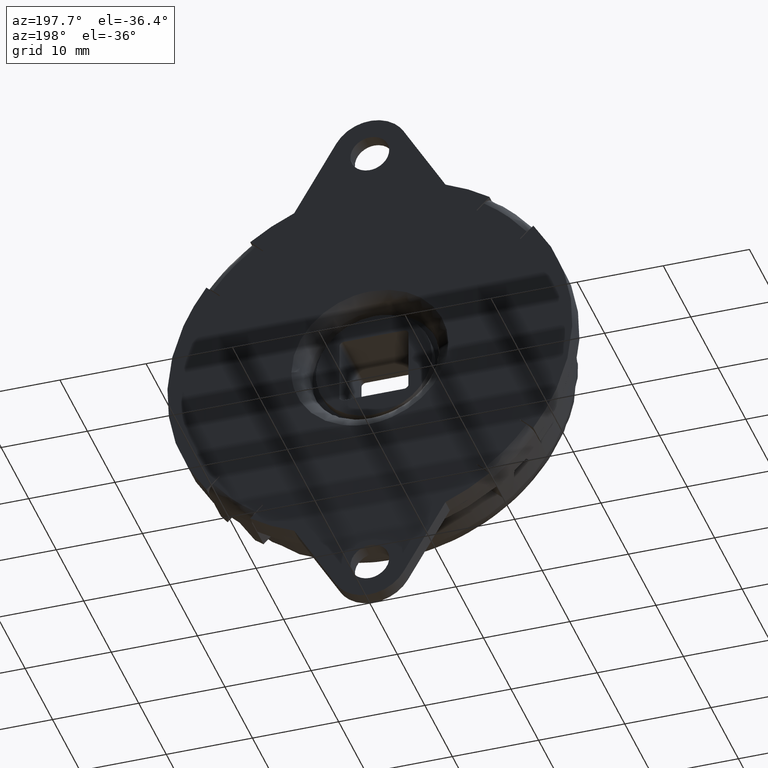
[diagram: clean part render]
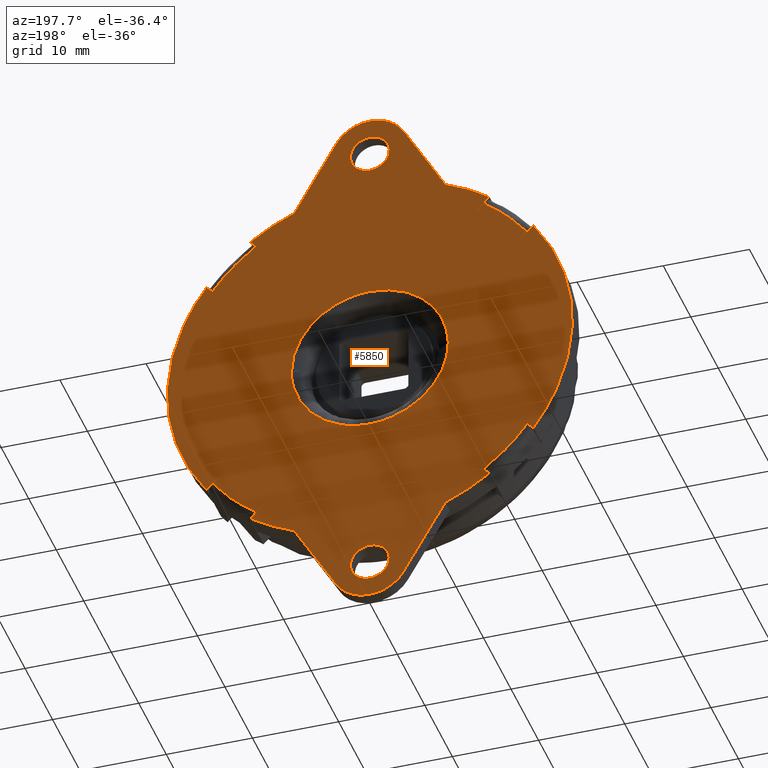
[diagram: same view with one face highlighted and labeled with its STEP entity id]
A machine part, auxiliary view. The second image highlights one B-rep face of the part: STEP entity #5850.
In plain terms, the highlighted face is a freeform B-spline surface patch.
Its self-contained STEP definition (entity closure, byte-faithful):
#1320=CARTESIAN_POINT('',(-17.462018315590651,0.0,-12.370849459353121));
#1321=VERTEX_POINT('',#1320);
#1327=CARTESIAN_POINT('',(-17.403202521887501,0.0,-12.453455021887279));
#1328=VERTEX_POINT('',#1327);
#1329=CARTESIAN_POINT('',(-17.462018315590640,0.0,-12.370849459353110));
#1330=CARTESIAN_POINT('',(-17.432708276701906,0.0,-12.412221916239552));
#1331=CARTESIAN_POINT('',(-17.403202521887479,0.0,-12.453455021887271));
#1339=(BOUNDED_CURVE()B_SPLINE_CURVE(2,(#1329,#1330,#1331),.UNSPECIFIED.,.F.,.U.)CURVE()GEOMETRIC_REPRESENTATION_ITEM()QUASI_UNIFORM_CURVE()RATIONAL_B_SPLINE_CURVE((1.0,0.999997193261698,1.0))REPRESENTATION_ITEM(''));
#1340=EDGE_CURVE('',#1321,#1328,#1339,.T.);
#1424=CARTESIAN_POINT('',(-12.453454999999799,0.0,-17.403202499999999));
#1425=VERTEX_POINT('',#1424);
#1431=CARTESIAN_POINT('',(-12.370849459353121,0.0,-17.462018315590651));
#1432=VERTEX_POINT('',#1431);
#1433=CARTESIAN_POINT('',(-12.453454999999799,0.0,-17.403202499999999));
#1434=CARTESIAN_POINT('',(-12.412221914174198,0.0,-17.432708278165094));
#1435=CARTESIAN_POINT('',(-12.370849459353110,0.0,-17.462018315590630));
#1443=(BOUNDED_CURVE()B_SPLINE_CURVE(2,(#1433,#1434,#1435),.UNSPECIFIED.,.F.,.U.)CURVE()GEOMETRIC_REPRESENTATION_ITEM()QUASI_UNIFORM_CURVE()RATIONAL_B_SPLINE_CURVE((1.0,0.999997193261978,1.0))REPRESENTATION_ITEM(''));
#1444=EDGE_CURVE('',#1425,#1432,#1443,.T.);
#1468=CARTESIAN_POINT('',(12.370849459353121,0.0,-17.462018315590651));
#1469=VERTEX_POINT('',#1468);
#1475=CARTESIAN_POINT('',(12.453455021887279,0.0,-17.403202521887501));
#1476=VERTEX_POINT('',#1475);
#1477=CARTESIAN_POINT('',(12.370849459353110,0.0,-17.462018315590640));
#1478=CARTESIAN_POINT('',(12.412221916239552,0.0,-17.432708276701906));
#1479=CARTESIAN_POINT('',(12.453455021887271,0.0,-17.403202521887479));
#1487=(BOUNDED_CURVE()B_SPLINE_CURVE(2,(#1477,#1478,#1479),.UNSPECIFIED.,.F.,.U.)CURVE()GEOMETRIC_REPRESENTATION_ITEM()QUASI_UNIFORM_CURVE()RATIONAL_B_SPLINE_CURVE((1.0,0.999997193261698,1.0))REPRESENTATION_ITEM(''));
#1488=EDGE_CURVE('',#1469,#1476,#1487,.T.);
#1572=CARTESIAN_POINT('',(17.403202499999999,0.0,-12.453454999999799));
#1573=VERTEX_POINT('',#1572);
#1579=CARTESIAN_POINT('',(17.462018315590651,0.0,-12.370849459353121));
#1580=VERTEX_POINT('',#1579);
#1581=CARTESIAN_POINT('',(17.403202499999999,0.0,-12.453454999999799));
#1582=CARTESIAN_POINT('',(17.432708278165151,0.0,-12.412221914174099));
#1583=CARTESIAN_POINT('',(17.462018315590630,0.0,-12.370849459353110));
#1591=(BOUNDED_CURVE()B_SPLINE_CURVE(2,(#1581,#1582,#1583),.UNSPECIFIED.,.F.,.U.)CURVE()GEOMETRIC_REPRESENTATION_ITEM()QUASI_UNIFORM_CURVE()RATIONAL_B_SPLINE_CURVE((1.0,0.999997193261978,1.0))REPRESENTATION_ITEM(''));
#1592=EDGE_CURVE('',#1573,#1580,#1591,.T.);
#1616=CARTESIAN_POINT('',(17.462018315590651,0.0,12.370849459353121));
#1617=VERTEX_POINT('',#1616);
#1623=CARTESIAN_POINT('',(17.403202521887501,0.0,12.453455021887279));
#1624=VERTEX_POINT('',#1623);
#1625=CARTESIAN_POINT('',(17.462018315590640,0.0,12.370849459353110));
#1626=CARTESIAN_POINT('',(17.432708276701906,0.0,12.412221916239552));
#1627=CARTESIAN_POINT('',(17.403202521887479,0.0,12.453455021887271));
#1635=(BOUNDED_CURVE()B_SPLINE_CURVE(2,(#1625,#1626,#1627),.UNSPECIFIED.,.F.,.U.)CURVE()GEOMETRIC_REPRESENTATION_ITEM()QUASI_UNIFORM_CURVE()RATIONAL_B_SPLINE_CURVE((1.0,0.999997193261698,1.0))REPRESENTATION_ITEM(''));
#1636=EDGE_CURVE('',#1617,#1624,#1635,.T.);
#1720=CARTESIAN_POINT('',(12.453454999999799,0.0,17.403202499999999));
#1721=VERTEX_POINT('',#1720);
#1727=CARTESIAN_POINT('',(12.370849459353121,0.0,17.462018315590651));
#1728=VERTEX_POINT('',#1727);
#1729=CARTESIAN_POINT('',(12.453454999999799,0.0,17.403202499999999));
#1730=CARTESIAN_POINT('',(12.412221914173937,0.0,17.432708278165272));
#1731=CARTESIAN_POINT('',(12.370849459353121,0.0,17.462018315590630));
#1739=(BOUNDED_CURVE()B_SPLINE_CURVE(2,(#1729,#1730,#1731),.UNSPECIFIED.,.F.,.U.)CURVE()GEOMETRIC_REPRESENTATION_ITEM()QUASI_UNIFORM_CURVE()RATIONAL_B_SPLINE_CURVE((1.0,0.999997193261979,1.0))REPRESENTATION_ITEM(''));
#1740=EDGE_CURVE('',#1721,#1728,#1739,.T.);
#2055=CARTESIAN_POINT('',(-12.370849459353121,0.0,17.462018315590651));
#2056=VERTEX_POINT('',#2055);
#2062=CARTESIAN_POINT('',(-12.453455021887279,0.0,17.403202521887501));
#2063=VERTEX_POINT('',#2062);
#2064=CARTESIAN_POINT('',(-12.370849459353110,0.0,17.462018315590630));
#2065=CARTESIAN_POINT('',(-12.412221916240043,0.0,17.432708276701554));
#2066=CARTESIAN_POINT('',(-12.453455021887271,0.0,17.403202521887479));
#2074=(BOUNDED_CURVE()B_SPLINE_CURVE(2,(#2064,#2065,#2066),.UNSPECIFIED.,.F.,.U.)CURVE()GEOMETRIC_REPRESENTATION_ITEM()QUASI_UNIFORM_CURVE()RATIONAL_B_SPLINE_CURVE((1.0,0.999997193261698,1.0))REPRESENTATION_ITEM(''));
#2075=EDGE_CURVE('',#2056,#2063,#2074,.T.);
#2159=CARTESIAN_POINT('',(-17.403202499999999,0.0,12.453454999999799));
#2160=VERTEX_POINT('',#2159);
#2166=CARTESIAN_POINT('',(-17.462018315590651,0.0,12.370849459353121));
#2167=VERTEX_POINT('',#2166);
#2168=CARTESIAN_POINT('',(-17.403202499999999,0.0,12.453454999999799));
#2169=CARTESIAN_POINT('',(-17.432708278165283,0.0,12.412221914173928));
#2170=CARTESIAN_POINT('',(-17.462018315590630,0.0,12.370849459353110));
#2178=(BOUNDED_CURVE()B_SPLINE_CURVE(2,(#2168,#2169,#2170),.UNSPECIFIED.,.F.,.U.)CURVE()GEOMETRIC_REPRESENTATION_ITEM()QUASI_UNIFORM_CURVE()RATIONAL_B_SPLINE_CURVE((1.0,0.999997193261978,1.0))REPRESENTATION_ITEM(''));
#2179=EDGE_CURVE('',#2160,#2167,#2178,.T.);
#2276=CARTESIAN_POINT('',(-2.243064000891092,-4.510281E-017,-27.823467034505040));
#2277=VERTEX_POINT('',#2276);
#2283=CARTESIAN_POINT('',(0.0,0.0,-25.750000000000000));
#2284=VERTEX_POINT('',#2283);
#2285=CARTESIAN_POINT('',(0.0,0.0,-25.750000000000000));
#2286=CARTESIAN_POINT('',(-2.079878606031341,0.0,-25.750000000000007));
#2287=CARTESIAN_POINT('',(-2.243064000891092,-4.510281E-017,-27.823467034505033));
#2295=(BOUNDED_CURVE()B_SPLINE_CURVE(2,(#2285,#2286,#2287),.UNSPECIFIED.,.F.,.U.)B_SPLINE_CURVE_WITH_KNOTS((3,3),(0.0,0.236331300616364),.UNSPECIFIED.)CURVE()GEOMETRIC_REPRESENTATION_ITEM()RATIONAL_B_SPLINE_CURVE((1.0,0.723120658624413,0.969723356137585))REPRESENTATION_ITEM(''));
#2296=EDGE_CURVE('',#2284,#2277,#2295,.T.);
#2298=CARTESIAN_POINT('',(2.243064000891092,-4.510281E-017,-28.176532965494960));
#2299=VERTEX_POINT('',#2298);
#2300=CARTESIAN_POINT('',(2.243064000891093,-4.510281E-017,-28.176532965494964));
#2301=CARTESIAN_POINT('',(2.250000000000000,0.0,-28.088402740875068));
#2302=CARTESIAN_POINT('',(2.250000000000000,0.0,-28.0));
#2303=CARTESIAN_POINT('',(2.250000000000000,0.0,-25.750000000000004));
#2304=CARTESIAN_POINT('',(0.0,0.0,-25.750000000000000));
#2312=(BOUNDED_CURVE()B_SPLINE_CURVE(2,(#2300,#2301,#2302,#2303,#2304),.UNSPECIFIED.,.F.,.U.)B_SPLINE_CURVE_WITH_KNOTS((3,2,3),(0.736331300616365,0.750000000000000,1.0),.UNSPECIFIED.)CURVE()GEOMETRIC_REPRESENTATION_ITEM()RATIONAL_B_SPLINE_CURVE((0.969723356137586,0.983986122562134,1.0,0.707106781186547,1.0))REPRESENTATION_ITEM(''));
#2313=EDGE_CURVE('',#2299,#2284,#2312,.T.);
#2389=CARTESIAN_POINT('',(0.0,0.0,-30.250000000000000));
#2390=VERTEX_POINT('',#2389);
#2391=CARTESIAN_POINT('',(0.0,0.0,-30.250000000000000));
#2392=CARTESIAN_POINT('',(2.079878606031331,0.0,-30.249999999999996));
#2393=CARTESIAN_POINT('',(2.243064000891092,-4.510281E-017,-28.176532965494960));
#2401=(BOUNDED_CURVE()B_SPLINE_CURVE(2,(#2391,#2392,#2393),.UNSPECIFIED.,.F.,.U.)B_SPLINE_CURVE_WITH_KNOTS((3,3),(0.500000000000000,0.736331300616364),.UNSPECIFIED.)CURVE()GEOMETRIC_REPRESENTATION_ITEM()RATIONAL_B_SPLINE_CURVE((1.0,0.723120658624414,0.969723356137583))REPRESENTATION_ITEM(''));
#2402=EDGE_CURVE('',#2390,#2299,#2401,.T.);
#2404=CARTESIAN_POINT('',(-2.243064000891092,-4.510281E-017,-27.823467034505036));
#2405=CARTESIAN_POINT('',(-2.250000000000000,0.0,-27.911597259124928));
#2406=CARTESIAN_POINT('',(-2.250000000000000,0.0,-28.0));
#2407=CARTESIAN_POINT('',(-2.250000000000000,0.0,-30.250000000000000));
#2408=CARTESIAN_POINT('',(0.0,0.0,-30.250000000000000));
#2416=(BOUNDED_CURVE()B_SPLINE_CURVE(2,(#2404,#2405,#2406,#2407,#2408),.UNSPECIFIED.,.F.,.U.)B_SPLINE_CURVE_WITH_KNOTS((3,2,3),(0.236331300616364,0.250000000000000,0.500000000000000),.UNSPECIFIED.)CURVE()GEOMETRIC_REPRESENTATION_ITEM()RATIONAL_B_SPLINE_CURVE((0.969723356137585,0.983986122562134,1.0,0.707106781186547,1.0))REPRESENTATION_ITEM(''));
#2417=EDGE_CURVE('',#2277,#2390,#2416,.T.);
#2458=CARTESIAN_POINT('',(-2.243064000891092,-4.510281E-017,28.176532965494960));
#2459=VERTEX_POINT('',#2458);
#2465=CARTESIAN_POINT('',(0.0,0.0,30.250000000000000));
#2466=VERTEX_POINT('',#2465);
#2467=CARTESIAN_POINT('',(0.0,0.0,30.250000000000000));
#2468=CARTESIAN_POINT('',(-2.079878606031345,0.0,30.249999999999996));
#2469=CARTESIAN_POINT('',(-2.243064000891093,-4.510281E-017,28.176532965494964));
#2477=(BOUNDED_CURVE()B_SPLINE_CURVE(2,(#2467,#2468,#2469),.UNSPECIFIED.,.F.,.U.)B_SPLINE_CURVE_WITH_KNOTS((3,3),(0.0,0.236331300616365),.UNSPECIFIED.)CURVE()GEOMETRIC_REPRESENTATION_ITEM()RATIONAL_B_SPLINE_CURVE((1.0,0.723120658624413,0.969723356137586))REPRESENTATION_ITEM(''));
#2478=EDGE_CURVE('',#2466,#2459,#2477,.T.);
#2480=CARTESIAN_POINT('',(2.243064000891092,-4.510281E-017,27.823467034505040));
#2481=VERTEX_POINT('',#2480);
#2482=CARTESIAN_POINT('',(2.243064000891093,-4.510281E-017,27.823467034505040));
#2483=CARTESIAN_POINT('',(2.250000000000000,0.0,27.911597259124942));
#2484=CARTESIAN_POINT('',(2.250000000000000,0.0,28.0));
#2485=CARTESIAN_POINT('',(2.250000000000000,0.0,30.250000000000000));
#2486=CARTESIAN_POINT('',(0.0,0.0,30.250000000000000));
#2494=(BOUNDED_CURVE()B_SPLINE_CURVE(2,(#2482,#2483,#2484,#2485,#2486),.UNSPECIFIED.,.F.,.U.)B_SPLINE_CURVE_WITH_KNOTS((3,2,3),(0.736331300616365,0.750000000000000,1.0),.UNSPECIFIED.)CURVE()GEOMETRIC_REPRESENTATION_ITEM()RATIONAL_B_SPLINE_CURVE((0.969723356137586,0.983986122562134,1.0,0.707106781186547,1.0))REPRESENTATION_ITEM(''));
#2495=EDGE_CURVE('',#2481,#2466,#2494,.T.);
#2571=CARTESIAN_POINT('',(0.0,0.0,25.750000000000000));
#2572=VERTEX_POINT('',#2571);
#2573=CARTESIAN_POINT('',(0.0,0.0,25.750000000000000));
#2574=CARTESIAN_POINT('',(2.079878606031331,0.0,25.750000000000014));
#2575=CARTESIAN_POINT('',(2.243064000891092,-4.510281E-017,27.823467034505036));
#2583=(BOUNDED_CURVE()B_SPLINE_CURVE(2,(#2573,#2574,#2575),.UNSPECIFIED.,.F.,.U.)B_SPLINE_CURVE_WITH_KNOTS((3,3),(0.500000000000000,0.736331300616364),.UNSPECIFIED.)CURVE()GEOMETRIC_REPRESENTATION_ITEM()RATIONAL_B_SPLINE_CURVE((1.0,0.723120658624414,0.969723356137583))REPRESENTATION_ITEM(''));
#2584=EDGE_CURVE('',#2572,#2481,#2583,.T.);
#2586=CARTESIAN_POINT('',(-2.243064000891093,-4.510281E-017,28.176532965494964));
#2587=CARTESIAN_POINT('',(-2.250000000000000,0.0,28.088402740875068));
#2588=CARTESIAN_POINT('',(-2.250000000000000,0.0,28.0));
#2589=CARTESIAN_POINT('',(-2.250000000000000,0.0,25.750000000000004));
#2590=CARTESIAN_POINT('',(0.0,0.0,25.750000000000000));
#2598=(BOUNDED_CURVE()B_SPLINE_CURVE(2,(#2586,#2587,#2588,#2589,#2590),.UNSPECIFIED.,.F.,.U.)B_SPLINE_CURVE_WITH_KNOTS((3,2,3),(0.236331300616365,0.250000000000000,0.500000000000000),.UNSPECIFIED.)CURVE()GEOMETRIC_REPRESENTATION_ITEM()RATIONAL_B_SPLINE_CURVE((0.969723356137586,0.983986122562134,1.0,0.707106781186547,1.0))REPRESENTATION_ITEM(''));
#2599=EDGE_CURVE('',#2459,#2572,#2598,.T.);
#3218=CARTESIAN_POINT('',(-7.105427E-015,0.0,-9.099999999999994));
#3219=VERTEX_POINT('',#3218);
#3220=CARTESIAN_POINT('',(3.215047896220643,-2.284612E-014,-8.513134968886707));
#3221=VERTEX_POINT('',#3220);
#3222=CARTESIAN_POINT('',(-7.105427E-015,0.0,-9.099999999999994));
#3223=CARTESIAN_POINT('',(1.661086224057319,0.0,-9.099999999999994));
#3224=CARTESIAN_POINT('',(3.215047896220643,-2.284612E-014,-8.513134968886707));
#3232=(BOUNDED_CURVE()B_SPLINE_CURVE(2,(#3222,#3223,#3224),.UNSPECIFIED.,.F.,.U.)B_SPLINE_CURVE_WITH_KNOTS((3,3),(0.500000000000000,0.560000000004772),.UNSPECIFIED.)CURVE()GEOMETRIC_REPRESENTATION_ITEM()RATIONAL_B_SPLINE_CURVE((1.0,0.929705627479181,0.893152553771039))REPRESENTATION_ITEM(''));
#3233=EDGE_CURVE('',#3219,#3221,#3232,.T.);
#3235=CARTESIAN_POINT('',(-7.105427E-015,0.0,9.100000000000007));
#3236=VERTEX_POINT('',#3235);
#3237=CARTESIAN_POINT('',(-7.105427E-015,0.0,9.100000000000007));
#3238=CARTESIAN_POINT('',(-9.100000000000009,0.0,9.100000000000009));
#3239=CARTESIAN_POINT('',(-9.100000000000007,0.0,7.105427E-015));
#3240=CARTESIAN_POINT('',(-9.100000000000009,0.0,-9.099999999999994));
#3241=CARTESIAN_POINT('',(-7.105427E-015,0.0,-9.099999999999994));
#3249=(BOUNDED_CURVE()B_SPLINE_CURVE(2,(#3237,#3238,#3239,#3240,#3241),.UNSPECIFIED.,.F.,.U.)B_SPLINE_CURVE_WITH_KNOTS((3,2,3),(0.0,0.250000000000000,0.500000000000000),.UNSPECIFIED.)CURVE()GEOMETRIC_REPRESENTATION_ITEM()RATIONAL_B_SPLINE_CURVE((1.0,0.707106781186548,1.0,0.707106781186548,1.0))REPRESENTATION_ITEM(''));
#3250=EDGE_CURVE('',#3236,#3219,#3249,.T.);
#3252=CARTESIAN_POINT('',(9.099999999734434,-2.285745E-014,2.217157E-015));
#3253=VERTEX_POINT('',#3252);
#3254=CARTESIAN_POINT('',(9.099999999734438,-2.285745E-014,2.217157E-015));
#3255=CARTESIAN_POINT('',(9.100000000000005,0.0,9.100000000000005));
#3256=CARTESIAN_POINT('',(-7.105427E-015,0.0,9.100000000000007));
#3264=(BOUNDED_CURVE()B_SPLINE_CURVE(2,(#3254,#3255,#3256),.UNSPECIFIED.,.F.,.U.)B_SPLINE_CURVE_WITH_KNOTS((3,3),(0.750000000000000,1.0),.UNSPECIFIED.)CURVE()GEOMETRIC_REPRESENTATION_ITEM()RATIONAL_B_SPLINE_CURVE((1.0,0.707106781186547,1.0))REPRESENTATION_ITEM(''));
#3265=EDGE_CURVE('',#3253,#3236,#3264,.T.);
#3318=CARTESIAN_POINT('',(3.215047896220643,-2.284612E-014,-8.513134968886707));
#3319=CARTESIAN_POINT('',(9.099999999999978,0.0,-6.290639620537763));
#3320=CARTESIAN_POINT('',(9.099999999734434,-2.285745E-014,2.217157E-015));
#3328=(BOUNDED_CURVE()B_SPLINE_CURVE(2,(#3318,#3319,#3320),.UNSPECIFIED.,.F.,.U.)B_SPLINE_CURVE_WITH_KNOTS((3,3),(0.560000000004772,0.750000000000000),.UNSPECIFIED.)CURVE()GEOMETRIC_REPRESENTATION_ITEM()RATIONAL_B_SPLINE_CURVE((0.893152553771038,0.777401153707367,0.999999999999999))REPRESENTATION_ITEM(''));
#3329=EDGE_CURVE('',#3221,#3253,#3328,.T.);
#3627=CARTESIAN_POINT('',(18.191107393006099,0.0,13.241359893006120));
#3628=VERTEX_POINT('',#3627);
#3656=CARTESIAN_POINT('',(13.241359880965740,0.0,18.191107401770552));
#3657=VERTEX_POINT('',#3656);
#3658=CARTESIAN_POINT('',(13.241359880965730,0.0,18.191107401770552));
#3659=CARTESIAN_POINT('',(16.105958060890913,0.0,16.105958071551271));
#3660=CARTESIAN_POINT('',(18.191107393006099,0.0,13.241359893006120));
#3668=(BOUNDED_CURVE()B_SPLINE_CURVE(2,(#3658,#3659,#3660),.UNSPECIFIED.,.F.,.U.)CURVE()GEOMETRIC_REPRESENTATION_ITEM()QUASI_UNIFORM_CURVE()RATIONAL_B_SPLINE_CURVE((1.0,0.987827145164685,1.0))REPRESENTATION_ITEM(''));
#3669=EDGE_CURVE('',#3657,#3628,#3668,.T.);
#3734=CARTESIAN_POINT('',(13.241359893006120,0.0,-18.191107393006099));
#3735=VERTEX_POINT('',#3734);
#3763=CARTESIAN_POINT('',(18.191107401770552,0.0,-13.241359880965740));
#3764=VERTEX_POINT('',#3763);
#3765=CARTESIAN_POINT('',(18.191107401770541,0.0,-13.241359880965740));
#3766=CARTESIAN_POINT('',(16.105958071551267,0.0,-16.105958060890909));
#3767=CARTESIAN_POINT('',(13.241359893006120,0.0,-18.191107393006099));
#3775=(BOUNDED_CURVE()B_SPLINE_CURVE(2,(#3765,#3766,#3767),.UNSPECIFIED.,.F.,.U.)CURVE()GEOMETRIC_REPRESENTATION_ITEM()QUASI_UNIFORM_CURVE()RATIONAL_B_SPLINE_CURVE((1.0,0.987827145164685,1.0))REPRESENTATION_ITEM(''));
#3776=EDGE_CURVE('',#3764,#3735,#3775,.T.);
#3841=CARTESIAN_POINT('',(-18.191107393006099,0.0,-13.241359893006120));
#3842=VERTEX_POINT('',#3841);
#3870=CARTESIAN_POINT('',(-13.241359880965740,0.0,-18.191107401770552));
#3871=VERTEX_POINT('',#3870);
#3872=CARTESIAN_POINT('',(-13.241359880965730,0.0,-18.191107401770552));
#3873=CARTESIAN_POINT('',(-16.105958060890920,0.0,-16.105958071551267));
#3874=CARTESIAN_POINT('',(-18.191107393006099,0.0,-13.241359893006120));
#3882=(BOUNDED_CURVE()B_SPLINE_CURVE(2,(#3872,#3873,#3874),.UNSPECIFIED.,.F.,.U.)CURVE()GEOMETRIC_REPRESENTATION_ITEM()QUASI_UNIFORM_CURVE()RATIONAL_B_SPLINE_CURVE((1.0,0.987827145164685,1.0))REPRESENTATION_ITEM(''));
#3883=EDGE_CURVE('',#3871,#3842,#3882,.T.);
#3948=CARTESIAN_POINT('',(-13.241359893006120,0.0,18.191107393006099));
#3949=VERTEX_POINT('',#3948);
#3977=CARTESIAN_POINT('',(-18.191107401770552,0.0,13.241359880965740));
#3978=VERTEX_POINT('',#3977);
#3979=CARTESIAN_POINT('',(-18.191107401770552,0.0,13.241359880965730));
#3980=CARTESIAN_POINT('',(-16.105958071551274,0.0,16.105958060890909));
#3981=CARTESIAN_POINT('',(-13.241359893006120,0.0,18.191107393006099));
#3989=(BOUNDED_CURVE()B_SPLINE_CURVE(2,(#3979,#3980,#3981),.UNSPECIFIED.,.F.,.U.)CURVE()GEOMETRIC_REPRESENTATION_ITEM()QUASI_UNIFORM_CURVE()RATIONAL_B_SPLINE_CURVE((1.0,0.987827145164686,1.0))REPRESENTATION_ITEM(''));
#3990=EDGE_CURVE('',#3978,#3949,#3989,.T.);
#4712=CARTESIAN_POINT('',(-17.403202521887501,0.0,-12.453455021887279));
#4713=CARTESIAN_POINT('',(-18.191107393006099,0.0,-13.241359893006120));
#4714=QUASI_UNIFORM_CURVE('',1,(#4712,#4713),.UNSPECIFIED.,.F.,.U.);
#4715=EDGE_CURVE('',#1328,#3842,#4714,.T.);
#4731=CARTESIAN_POINT('',(-12.453454999999799,0.0,-17.403202499999999));
#4732=CARTESIAN_POINT('',(-13.241359880965740,0.0,-18.191107401770552));
#4733=QUASI_UNIFORM_CURVE('',1,(#4731,#4732),.UNSPECIFIED.,.F.,.U.);
#4734=EDGE_CURVE('',#1425,#3871,#4733,.T.);
#4818=CARTESIAN_POINT('',(17.403202521887501,0.0,12.453455021887279));
#4819=CARTESIAN_POINT('',(18.191107393006099,0.0,13.241359893006120));
#4820=QUASI_UNIFORM_CURVE('',1,(#4818,#4819),.UNSPECIFIED.,.F.,.U.);
#4821=EDGE_CURVE('',#1624,#3628,#4820,.T.);
#4837=CARTESIAN_POINT('',(12.453454999999799,0.0,17.403202499999999));
#4838=CARTESIAN_POINT('',(13.241359880965740,0.0,18.191107401770552));
#4839=QUASI_UNIFORM_CURVE('',1,(#4837,#4838),.UNSPECIFIED.,.F.,.U.);
#4840=EDGE_CURVE('',#1721,#3657,#4839,.T.);
#4924=CARTESIAN_POINT('',(12.453455021887279,0.0,-17.403202521887501));
#4925=CARTESIAN_POINT('',(13.241359893006120,0.0,-18.191107393006099));
#4926=QUASI_UNIFORM_CURVE('',1,(#4924,#4925),.UNSPECIFIED.,.F.,.U.);
#4927=EDGE_CURVE('',#1476,#3735,#4926,.T.);
#4943=CARTESIAN_POINT('',(17.403202499999999,0.0,-12.453454999999799));
#4944=CARTESIAN_POINT('',(18.191107401770552,0.0,-13.241359880965740));
#4945=QUASI_UNIFORM_CURVE('',1,(#4943,#4944),.UNSPECIFIED.,.F.,.U.);
#4946=EDGE_CURVE('',#1573,#3764,#4945,.T.);
#5030=CARTESIAN_POINT('',(-12.453455021887279,0.0,17.403202521887501));
#5031=CARTESIAN_POINT('',(-13.241359893006120,0.0,18.191107393006099));
#5032=QUASI_UNIFORM_CURVE('',1,(#5030,#5031),.UNSPECIFIED.,.F.,.U.);
#5033=EDGE_CURVE('',#2063,#3949,#5032,.T.);
#5049=CARTESIAN_POINT('',(-17.403202499999999,0.0,12.453454999999799));
#5050=CARTESIAN_POINT('',(-18.191107401770552,0.0,13.241359880965740));
#5051=QUASI_UNIFORM_CURVE('',1,(#5049,#5050),.UNSPECIFIED.,.F.,.U.);
#5052=EDGE_CURVE('',#2160,#3978,#5051,.T.);
#5093=CARTESIAN_POINT('',(-8.775781547366780,0.0,-21.799900417958249));
#5094=VERTEX_POINT('',#5093);
#5095=CARTESIAN_POINT('',(-3.897114500000015,0.0,-30.250000000000000));
#5096=VERTEX_POINT('',#5095);
#5097=CARTESIAN_POINT('',(-8.775781547366780,0.0,-21.799900417958249));
#5098=CARTESIAN_POINT('',(-3.897114500000015,0.0,-30.250000000000000));
#5099=QUASI_UNIFORM_CURVE('',1,(#5097,#5098),.UNSPECIFIED.,.F.,.U.);
#5100=EDGE_CURVE('',#5094,#5096,#5099,.T.);
#5131=CARTESIAN_POINT('',(-8.775781500000010,0.0,21.799900500000000));
#5132=VERTEX_POINT('',#5131);
#5145=CARTESIAN_POINT('',(-3.897114317029965,0.0,30.250000000000000));
#5146=VERTEX_POINT('',#5145);
#5152=CARTESIAN_POINT('',(-3.897114317029965,0.0,30.250000000000000));
#5153=CARTESIAN_POINT('',(-8.775781500000010,0.0,21.799900500000000));
#5154=QUASI_UNIFORM_CURVE('',1,(#5152,#5153),.UNSPECIFIED.,.F.,.U.);
#5155=EDGE_CURVE('',#5146,#5132,#5154,.T.);
#5174=CARTESIAN_POINT('',(3.897114500000100,0.0,30.250000000000000));
#5175=VERTEX_POINT('',#5174);
#5176=CARTESIAN_POINT('',(3.897114500000100,0.0,30.250000000000000));
#5177=CARTESIAN_POINT('',(2.598076287590868,0.0,32.499999973590533));
#5178=CARTESIAN_POINT('',(0.000000045742531,0.0,32.500000000000000));
#5179=CARTESIAN_POINT('',(-2.598076196105803,0.0,32.500000026409460));
#5180=CARTESIAN_POINT('',(-3.897114317029972,0.0,30.250000000000000));
#5188=(BOUNDED_CURVE()B_SPLINE_CURVE(2,(#5176,#5177,#5178,#5179,#5180),.UNSPECIFIED.,.F.,.U.)B_SPLINE_CURVE_WITH_KNOTS((3,2,3),(0.0,0.500000000000000,1.0),.UNSPECIFIED.)CURVE()GEOMETRIC_REPRESENTATION_ITEM()RATIONAL_B_SPLINE_CURVE((1.0,0.866025401243187,1.0,0.866025401243187,1.0))REPRESENTATION_ITEM(''));
#5189=EDGE_CURVE('',#5175,#5146,#5188,.T.);
#5222=CARTESIAN_POINT('',(8.775781547366950,0.0,21.799900417958199));
#5223=VERTEX_POINT('',#5222);
#5224=CARTESIAN_POINT('',(8.775781547366950,0.0,21.799900417958199));
#5225=CARTESIAN_POINT('',(3.897114500000100,0.0,30.250000000000000));
#5226=QUASI_UNIFORM_CURVE('',1,(#5224,#5225),.UNSPECIFIED.,.F.,.U.);
#5227=EDGE_CURVE('',#5223,#5175,#5226,.T.);
#5252=CARTESIAN_POINT('',(8.775781500000079,0.0,-21.799900499999900));
#5253=VERTEX_POINT('',#5252);
#5266=CARTESIAN_POINT('',(3.897114500000100,0.0,-30.250000000000000));
#5267=VERTEX_POINT('',#5266);
#5273=CARTESIAN_POINT('',(3.897114500000100,0.0,-30.250000000000000));
#5274=CARTESIAN_POINT('',(8.775781500000079,0.0,-21.799900499999900));
#5275=QUASI_UNIFORM_CURVE('',1,(#5273,#5274),.UNSPECIFIED.,.F.,.U.);
#5276=EDGE_CURVE('',#5267,#5253,#5275,.T.);
#5295=CARTESIAN_POINT('',(-3.897114500000015,0.0,-30.250000000000000));
#5296=CARTESIAN_POINT('',(-2.598076272343329,0.0,-32.500000000000000));
#5297=CARTESIAN_POINT('',(0.0,0.0,-32.500000000000000));
#5298=CARTESIAN_POINT('',(2.598076272343358,0.0,-32.500000000000000));
#5299=CARTESIAN_POINT('',(3.897114500000100,0.0,-30.250000000000000));
#5307=(BOUNDED_CURVE()B_SPLINE_CURVE(2,(#5295,#5296,#5297,#5298,#5299),.UNSPECIFIED.,.F.,.U.)B_SPLINE_CURVE_WITH_KNOTS((3,2,3),(0.0,0.500000000000000,1.0),.UNSPECIFIED.)CURVE()GEOMETRIC_REPRESENTATION_ITEM()RATIONAL_B_SPLINE_CURVE((1.0,0.866025398701938,1.0,0.866025398701938,1.0))REPRESENTATION_ITEM(''));
#5308=EDGE_CURVE('',#5096,#5267,#5307,.T.);
#5665=CARTESIAN_POINT('',(-25.847649908904870,0.0,35.746749874017382));
#5666=CARTESIAN_POINT('',(25.847651169543099,0.0,35.746749874017382));
#5667=CARTESIAN_POINT('',(-25.847649908904870,0.0,-35.746751617453242));
#5668=CARTESIAN_POINT('',(25.847651169543099,0.0,-35.746751617453242));
#5669=B_SPLINE_SURFACE_WITH_KNOTS('',1,1,((#5665,#5667),(#5666,#5668)),.UNSPECIFIED.,.F.,.F.,.U.,(2,2),(2,2),(0.0,51.695301078447969),(0.0,71.493501491470624),.UNSPECIFIED.);
#5670=ORIENTED_EDGE('',*,*,#5052,.T.);
#5671=ORIENTED_EDGE('',*,*,#3990,.T.);
#5672=ORIENTED_EDGE('',*,*,#5033,.F.);
#5673=ORIENTED_EDGE('',*,*,#2075,.F.);
#5674=CARTESIAN_POINT('',(-13.875286435490240,0.0,18.966455291727549));
#5675=VERTEX_POINT('',#5674);
#5676=CARTESIAN_POINT('',(-13.875286435490240,0.0,18.966455291727549));
#5677=CARTESIAN_POINT('',(-12.370849459353121,0.0,17.462018315590651));
#5678=QUASI_UNIFORM_CURVE('',1,(#5676,#5677),.UNSPECIFIED.,.F.,.U.);
#5679=EDGE_CURVE('',#5675,#2056,#5678,.T.);
#5680=ORIENTED_EDGE('',*,*,#5679,.F.);
#5681=CARTESIAN_POINT('',(-8.775781500000010,0.0,21.799900500000000));
#5682=CARTESIAN_POINT('',(-11.502753226846671,0.0,20.702129003093155));
#5683=CARTESIAN_POINT('',(-13.875286435490249,0.0,18.966455291727559));
#5691=(BOUNDED_CURVE()B_SPLINE_CURVE(2,(#5681,#5682,#5683),.UNSPECIFIED.,.F.,.U.)CURVE()GEOMETRIC_REPRESENTATION_ITEM()QUASI_UNIFORM_CURVE()RATIONAL_B_SPLINE_CURVE((1.0,0.992266757089363,1.0))REPRESENTATION_ITEM(''));
#5692=EDGE_CURVE('',#5132,#5675,#5691,.T.);
#5693=ORIENTED_EDGE('',*,*,#5692,.F.);
#5694=ORIENTED_EDGE('',*,*,#5155,.F.);
#5695=ORIENTED_EDGE('',*,*,#5189,.F.);
#5696=ORIENTED_EDGE('',*,*,#5227,.F.);
#5697=CARTESIAN_POINT('',(13.875286435490240,0.0,18.966455291727549));
#5698=VERTEX_POINT('',#5697);
#5699=CARTESIAN_POINT('',(13.875286435490249,0.0,18.966455291727559));
#5700=CARTESIAN_POINT('',(11.502753257412797,0.0,20.702128980731896));
#5701=CARTESIAN_POINT('',(8.775781547366950,0.0,21.799900417958192));
#5709=(BOUNDED_CURVE()B_SPLINE_CURVE(2,(#5699,#5700,#5701),.UNSPECIFIED.,.F.,.U.)CURVE()GEOMETRIC_REPRESENTATION_ITEM()QUASI_UNIFORM_CURVE()RATIONAL_B_SPLINE_CURVE((1.0,0.992266757286317,1.0))REPRESENTATION_ITEM(''));
#5710=EDGE_CURVE('',#5698,#5223,#5709,.T.);
#5711=ORIENTED_EDGE('',*,*,#5710,.F.);
#5712=CARTESIAN_POINT('',(13.875286435490240,0.0,18.966455291727549));
#5713=CARTESIAN_POINT('',(12.370849459353121,0.0,17.462018315590651));
#5714=QUASI_UNIFORM_CURVE('',1,(#5712,#5713),.UNSPECIFIED.,.F.,.U.);
#5715=EDGE_CURVE('',#5698,#1728,#5714,.T.);
#5716=ORIENTED_EDGE('',*,*,#5715,.T.);
#5717=ORIENTED_EDGE('',*,*,#1740,.F.);
#5718=ORIENTED_EDGE('',*,*,#4840,.T.);
#5719=ORIENTED_EDGE('',*,*,#3669,.T.);
#5720=ORIENTED_EDGE('',*,*,#4821,.F.);
#5721=ORIENTED_EDGE('',*,*,#1636,.F.);
#5722=CARTESIAN_POINT('',(18.966455291727549,0.0,13.875286435490240));
#5723=VERTEX_POINT('',#5722);
#5724=CARTESIAN_POINT('',(18.966455291727549,0.0,13.875286435490240));
#5725=CARTESIAN_POINT('',(17.462018315590651,0.0,12.370849459353121));
#5726=QUASI_UNIFORM_CURVE('',1,(#5724,#5725),.UNSPECIFIED.,.F.,.U.);
#5727=EDGE_CURVE('',#5723,#1617,#5726,.T.);
#5728=ORIENTED_EDGE('',*,*,#5727,.F.);
#5729=CARTESIAN_POINT('',(18.966455291727549,0.0,-13.875286435490240));
#5730=VERTEX_POINT('',#5729);
#5731=CARTESIAN_POINT('',(18.966455291727559,0.0,-13.875286435490249));
#5732=CARTESIAN_POINT('',(29.117196202754354,0.0,-5.204170E-015));
#5733=CARTESIAN_POINT('',(18.966455291727559,0.0,13.875286435490240));
#5741=(BOUNDED_CURVE()B_SPLINE_CURVE(2,(#5731,#5732,#5733),.UNSPECIFIED.,.F.,.U.)CURVE()GEOMETRIC_REPRESENTATION_ITEM()QUASI_UNIFORM_CURVE()RATIONAL_B_SPLINE_CURVE((1.0,0.807083203903301,1.0))REPRESENTATION_ITEM(''));
#5742=EDGE_CURVE('',#5730,#5723,#5741,.T.);
#5743=ORIENTED_EDGE('',*,*,#5742,.F.);
#5744=CARTESIAN_POINT('',(18.966455291727549,0.0,-13.875286435490240));
#5745=CARTESIAN_POINT('',(17.462018315590651,0.0,-12.370849459353121));
#5746=QUASI_UNIFORM_CURVE('',1,(#5744,#5745),.UNSPECIFIED.,.F.,.U.);
#5747=EDGE_CURVE('',#5730,#1580,#5746,.T.);
#5748=ORIENTED_EDGE('',*,*,#5747,.T.);
#5749=ORIENTED_EDGE('',*,*,#1592,.F.);
#5750=ORIENTED_EDGE('',*,*,#4946,.T.);
#5751=ORIENTED_EDGE('',*,*,#3776,.T.);
#5752=ORIENTED_EDGE('',*,*,#4927,.F.);
#5753=ORIENTED_EDGE('',*,*,#1488,.F.);
#5754=CARTESIAN_POINT('',(13.875286435490240,0.0,-18.966455291727549));
#5755=VERTEX_POINT('',#5754);
#5756=CARTESIAN_POINT('',(13.875286435490240,0.0,-18.966455291727549));
#5757=CARTESIAN_POINT('',(12.370849459353121,0.0,-17.462018315590651));
#5758=QUASI_UNIFORM_CURVE('',1,(#5756,#5757),.UNSPECIFIED.,.F.,.U.);
#5759=EDGE_CURVE('',#5755,#1469,#5758,.T.);
#5760=ORIENTED_EDGE('',*,*,#5759,.F.);
#5761=CARTESIAN_POINT('',(8.775781500000079,0.0,-21.799900499999900));
#5762=CARTESIAN_POINT('',(11.502753226846709,0.0,-20.702129003093123));
#5763=CARTESIAN_POINT('',(13.875286435490240,0.0,-18.966455291727559));
#5771=(BOUNDED_CURVE()B_SPLINE_CURVE(2,(#5761,#5762,#5763),.UNSPECIFIED.,.F.,.U.)CURVE()GEOMETRIC_REPRESENTATION_ITEM()QUASI_UNIFORM_CURVE()RATIONAL_B_SPLINE_CURVE((1.0,0.992266757089363,1.0))REPRESENTATION_ITEM(''));
#5772=EDGE_CURVE('',#5253,#5755,#5771,.T.);
#5773=ORIENTED_EDGE('',*,*,#5772,.F.);
#5774=ORIENTED_EDGE('',*,*,#5276,.F.);
#5775=ORIENTED_EDGE('',*,*,#5308,.F.);
#5776=ORIENTED_EDGE('',*,*,#5100,.F.);
#5777=CARTESIAN_POINT('',(-13.875286435490240,0.0,-18.966455291727549));
#5778=VERTEX_POINT('',#5777);
#5779=CARTESIAN_POINT('',(-13.875286435490249,0.0,-18.966455291727559));
#5780=CARTESIAN_POINT('',(-11.502753257412724,0.0,-20.702128980731949));
#5781=CARTESIAN_POINT('',(-8.775781547366783,0.0,-21.799900417958259));
#5789=(BOUNDED_CURVE()B_SPLINE_CURVE(2,(#5779,#5780,#5781),.UNSPECIFIED.,.F.,.U.)CURVE()GEOMETRIC_REPRESENTATION_ITEM()QUASI_UNIFORM_CURVE()RATIONAL_B_SPLINE_CURVE((1.0,0.992266757286317,1.0))REPRESENTATION_ITEM(''));
#5790=EDGE_CURVE('',#5778,#5094,#5789,.T.);
#5791=ORIENTED_EDGE('',*,*,#5790,.F.);
#5792=CARTESIAN_POINT('',(-13.875286435490240,0.0,-18.966455291727549));
#5793=CARTESIAN_POINT('',(-12.370849459353121,0.0,-17.462018315590651));
#5794=QUASI_UNIFORM_CURVE('',1,(#5792,#5793),.UNSPECIFIED.,.F.,.U.);
#5795=EDGE_CURVE('',#5778,#1432,#5794,.T.);
#5796=ORIENTED_EDGE('',*,*,#5795,.T.);
#5797=ORIENTED_EDGE('',*,*,#1444,.F.);
#5798=ORIENTED_EDGE('',*,*,#4734,.T.);
#5799=ORIENTED_EDGE('',*,*,#3883,.T.);
#5800=ORIENTED_EDGE('',*,*,#4715,.F.);
#5801=ORIENTED_EDGE('',*,*,#1340,.F.);
#5802=CARTESIAN_POINT('',(-18.966455291727549,0.0,-13.875286435490240));
#5803=VERTEX_POINT('',#5802);
#5804=CARTESIAN_POINT('',(-18.966455291727549,0.0,-13.875286435490240));
#5805=CARTESIAN_POINT('',(-17.462018315590651,0.0,-12.370849459353121));
#5806=QUASI_UNIFORM_CURVE('',1,(#5804,#5805),.UNSPECIFIED.,.F.,.U.);
#5807=EDGE_CURVE('',#5803,#1321,#5806,.T.);
#5808=ORIENTED_EDGE('',*,*,#5807,.F.);
#5809=CARTESIAN_POINT('',(-18.966455291727549,0.0,13.875286435490240));
#5810=VERTEX_POINT('',#5809);
#5811=CARTESIAN_POINT('',(-18.966455291727559,0.0,13.875286435490249));
#5812=CARTESIAN_POINT('',(-29.117196202754361,0.0,1.734723E-015));
#5813=CARTESIAN_POINT('',(-18.966455291727559,0.0,-13.875286435490249));
#5821=(BOUNDED_CURVE()B_SPLINE_CURVE(2,(#5811,#5812,#5813),.UNSPECIFIED.,.F.,.U.)CURVE()GEOMETRIC_REPRESENTATION_ITEM()QUASI_UNIFORM_CURVE()RATIONAL_B_SPLINE_CURVE((1.0,0.807083203903300,1.0))REPRESENTATION_ITEM(''));
#5822=EDGE_CURVE('',#5810,#5803,#5821,.T.);
#5823=ORIENTED_EDGE('',*,*,#5822,.F.);
#5824=CARTESIAN_POINT('',(-18.966455291727549,0.0,13.875286435490240));
#5825=CARTESIAN_POINT('',(-17.462018315590651,0.0,12.370849459353121));
#5826=QUASI_UNIFORM_CURVE('',1,(#5824,#5825),.UNSPECIFIED.,.F.,.U.);
#5827=EDGE_CURVE('',#5810,#2167,#5826,.T.);
#5828=ORIENTED_EDGE('',*,*,#5827,.T.);
#5829=ORIENTED_EDGE('',*,*,#2179,.F.);
#5830=EDGE_LOOP('',(#5670,#5671,#5672,#5673,#5680,#5693,#5694,#5695,#5696,#5711,#5716,#5717,#5718,#5719,#5720,#5721,#5728,#5743,#5748,#5749,#5750,#5751,#5752,#5753,#5760,#5773,#5774,#5775,#5776,#5791,#5796,#5797,#5798,#5799,#5800,#5801,#5808,#5823,#5828,#5829));
#5831=FACE_OUTER_BOUND('',#5830,.T.);
#5832=ORIENTED_EDGE('',*,*,#3250,.T.);
#5833=ORIENTED_EDGE('',*,*,#3233,.T.);
#5834=ORIENTED_EDGE('',*,*,#3329,.T.);
#5835=ORIENTED_EDGE('',*,*,#3265,.T.);
#5836=EDGE_LOOP('',(#5832,#5833,#5834,#5835));
#5837=FACE_BOUND('',#5836,.T.);
#5838=ORIENTED_EDGE('',*,*,#2584,.T.);
#5839=ORIENTED_EDGE('',*,*,#2495,.T.);
#5840=ORIENTED_EDGE('',*,*,#2478,.T.);
#5841=ORIENTED_EDGE('',*,*,#2599,.T.);
#5842=EDGE_LOOP('',(#5838,#5839,#5840,#5841));
#5843=FACE_BOUND('',#5842,.T.);
#5844=ORIENTED_EDGE('',*,*,#2402,.T.);
#5845=ORIENTED_EDGE('',*,*,#2313,.T.);
#5846=ORIENTED_EDGE('',*,*,#2296,.T.);
#5847=ORIENTED_EDGE('',*,*,#2417,.T.);
#5848=EDGE_LOOP('',(#5844,#5845,#5846,#5847));
#5849=FACE_BOUND('',#5848,.T.);
#5850=ADVANCED_FACE('',(#5831,#5837,#5843,#5849),#5669,.T.);